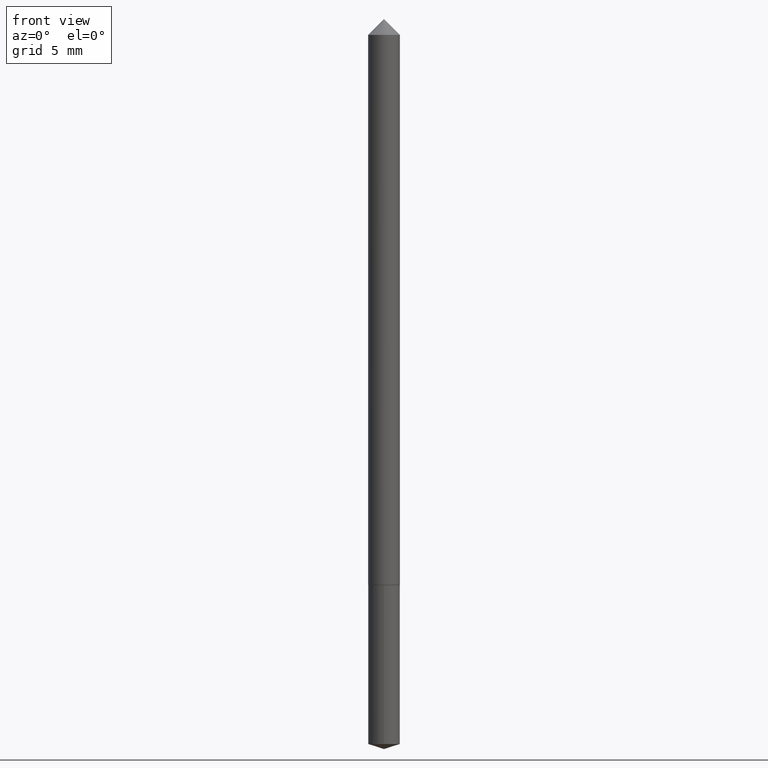
[diagram: clean part render]
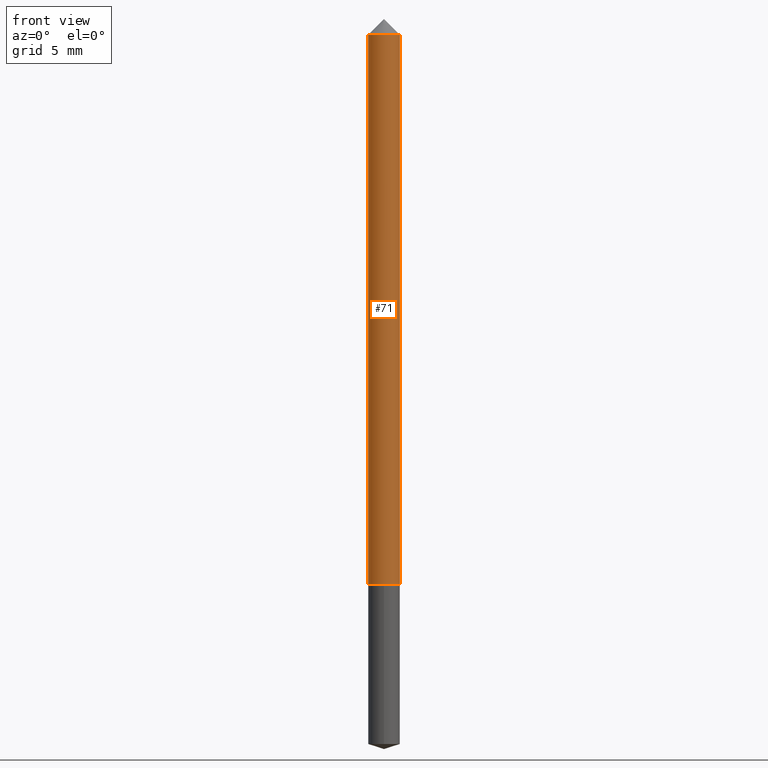
[diagram: same view with one face highlighted and labeled with its STEP entity id]
A machine part, front view. The second image highlights one B-rep face of the part: STEP entity #71.
In plain terms, the highlighted cylindrical surface (edge-blend (fillet) strip) has radius 0.6502 mm, axis along (-0, 0, 1).
Its self-contained STEP definition (entity closure, byte-faithful):
#4 = CARTESIAN_POINT ( 'NONE',  ( 0.02560000000000000817, -2.878726363876175249E-16, -0.03125000000000020123 ) ) ;
#14 = CYLINDRICAL_SURFACE ( 'NONE', #213, 0.02560000000000006368 ) ;
#21 = CARTESIAN_POINT ( 'NONE',  ( 0.02560000000000011572, -3.379753936000165015E-15, -0.9168000000000000593 ) ) ;
#35 = DIRECTION ( 'NONE',  ( -2.445468806185136877E-29, 3.491481338843145188E-15, 1.000000000000000000 ) ) ;
#36 = EDGE_CURVE ( 'NONE', #129, #93, #206, .T. ) ;
#38 = CIRCLE ( 'NONE', #362, 0.02560000000000000817 ) ;
#40 = VERTEX_POINT ( 'NONE', #21 ) ;
#41 = EDGE_CURVE ( 'NONE', #93, #258, #38, .T. ) ;
#43 = CARTESIAN_POINT ( 'NONE',  ( 0.000000000000000000, 0.000000000000000000, 0.000000000000000000 ) ) ;
#71 = ADVANCED_FACE ( 'NONE', ( #132 ), #14, .T. ) ;
#83 = CIRCLE ( 'NONE', #308, 0.02560000000000011572 ) ;
#86 = ORIENTED_EDGE ( 'NONE', *, *, #201, .T. ) ;
#93 = VERTEX_POINT ( 'NONE', #296 ) ;
#113 = CARTESIAN_POINT ( 'NONE',  ( 2.242005801510533500E-29, -3.200990091451395950E-15, -0.9168000000000000593 ) ) ;
#129 = VERTEX_POINT ( 'NONE', #243 ) ;
#132 = FACE_OUTER_BOUND ( 'NONE', #212, .T. ) ;
#148 = VECTOR ( 'NONE', #271, 39.37007874015748143 ) ;
#155 = CARTESIAN_POINT ( 'NONE',  ( -0.02560000000000006368, 1.818989403545861000E-16, -1.259247383105259117E-30 ) ) ;
#171 = LINE ( 'NONE', #315, #275 ) ;
#178 = CARTESIAN_POINT ( 'NONE',  ( 7.642090019328601786E-31, -1.091087918388490144E-16, -0.03125000000000020123 ) ) ;
#183 = DIRECTION ( 'NONE',  ( -2.445468806185136597E-29, 3.491481338843145583E-15, 1.000000000000000000 ) ) ;
#188 = DIRECTION ( 'NONE',  ( -2.445468806185136597E-29, 3.491481338843145583E-15, 1.000000000000000000 ) ) ;
#189 = ORIENTED_EDGE ( 'NONE', *, *, #338, .T. ) ;
#193 = DIRECTION ( 'NONE',  ( 1.000000000000000000, -6.982962677686270655E-15, 0.000000000000000000 ) ) ;
#201 = EDGE_CURVE ( 'NONE', #129, #40, #83, .T. ) ;
#206 = LINE ( 'NONE', #155, #148 ) ;
#209 = DIRECTION ( 'NONE',  ( 1.000000000000000000, -6.982962677686266711E-15, 4.876176775795935232E-29 ) ) ;
#210 = ORIENTED_EDGE ( 'NONE', *, *, #41, .F. ) ;
#212 = EDGE_LOOP ( 'NONE', ( #286, #86, #189, #210 ) ) ;
#213 = AXIS2_PLACEMENT_3D ( 'NONE', #43, #357, #209 ) ;
#243 = CARTESIAN_POINT ( 'NONE',  ( -0.02560000000000011572, -3.019091151096809431E-15, -0.9168000000000000593 ) ) ;
#258 = VERTEX_POINT ( 'NONE', #4 ) ;
#271 = DIRECTION ( 'NONE',  ( -2.445468806185136877E-29, 3.491481338843145188E-15, 1.000000000000000000 ) ) ;
#275 = VECTOR ( 'NONE', #35, 39.37007874015748143 ) ;
#286 = ORIENTED_EDGE ( 'NONE', *, *, #36, .F. ) ;
#296 = CARTESIAN_POINT ( 'NONE',  ( -0.02560000000000000817, -1.473150501290534626E-15, -0.03125000000000020123 ) ) ;
#308 = AXIS2_PLACEMENT_3D ( 'NONE', #113, #188, #193 ) ;
#315 = CARTESIAN_POINT ( 'NONE',  ( 0.02560000000000006368, -1.787638445487688680E-16, 1.248301254603762494E-30 ) ) ;
#327 = DIRECTION ( 'NONE',  ( 1.000000000000000000, -6.982962677686267499E-15, 0.000000000000000000 ) ) ;
#338 = EDGE_CURVE ( 'NONE', #40, #258, #171, .T. ) ;
#357 = DIRECTION ( 'NONE',  ( -2.445468806185136597E-29, 3.491481338843145583E-15, 1.000000000000000000 ) ) ;
#362 = AXIS2_PLACEMENT_3D ( 'NONE', #178, #183, #327 ) ;